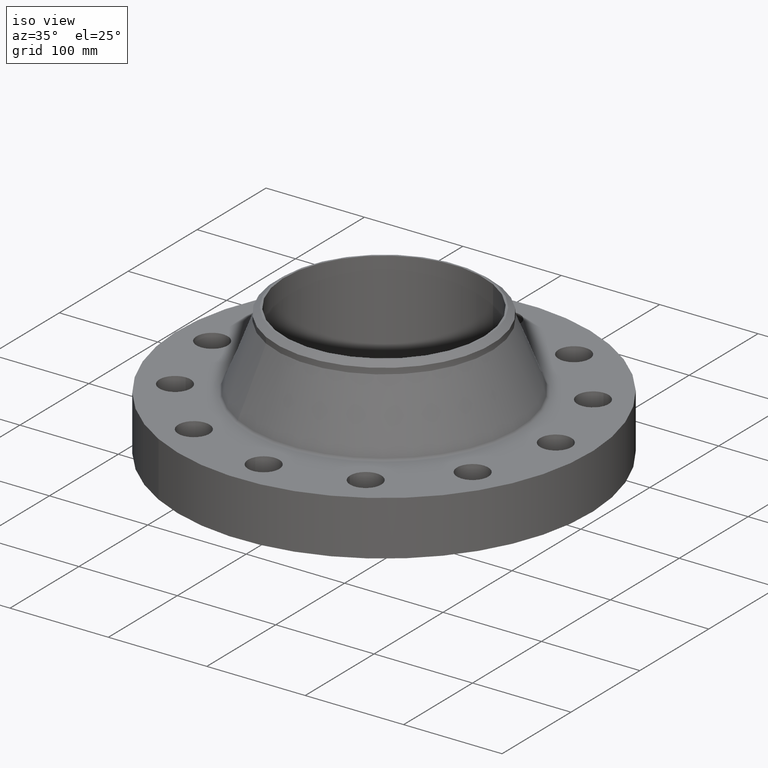
[diagram: clean part render]
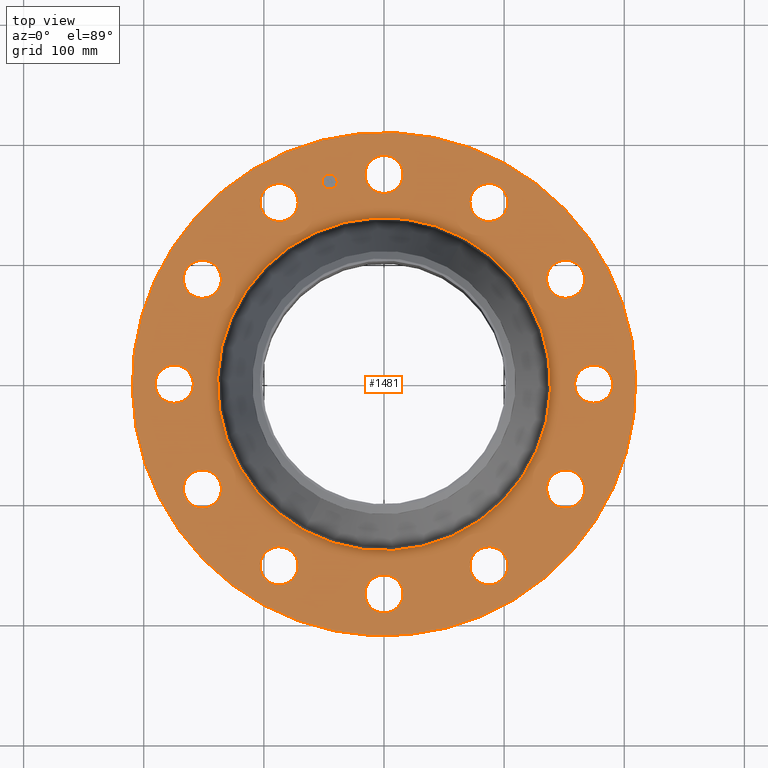
[diagram: tour spotlight — one face highlighted and labeled with its STEP entity id]
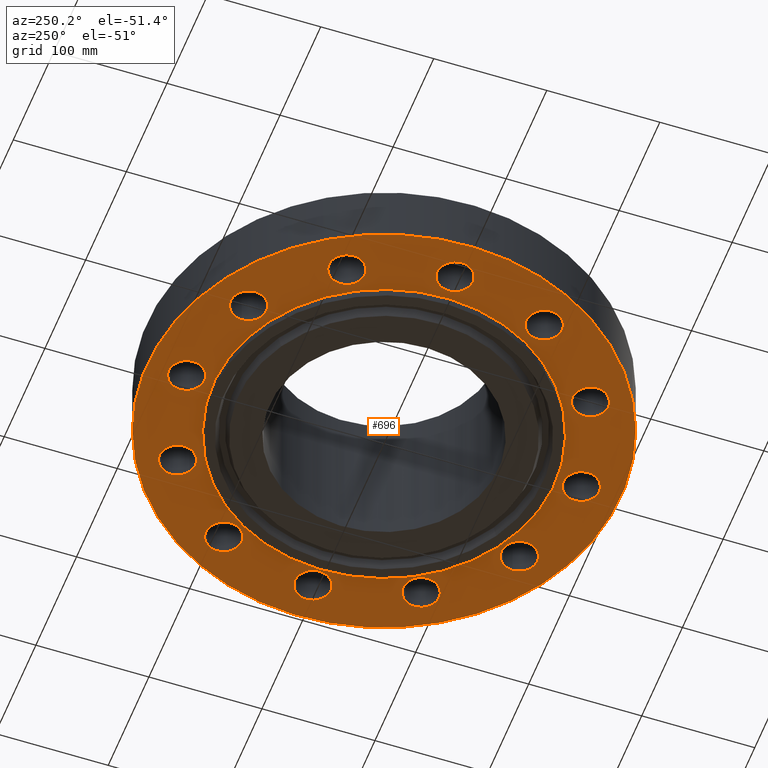
[diagram: tour spotlight — one face highlighted and labeled with its STEP entity id]
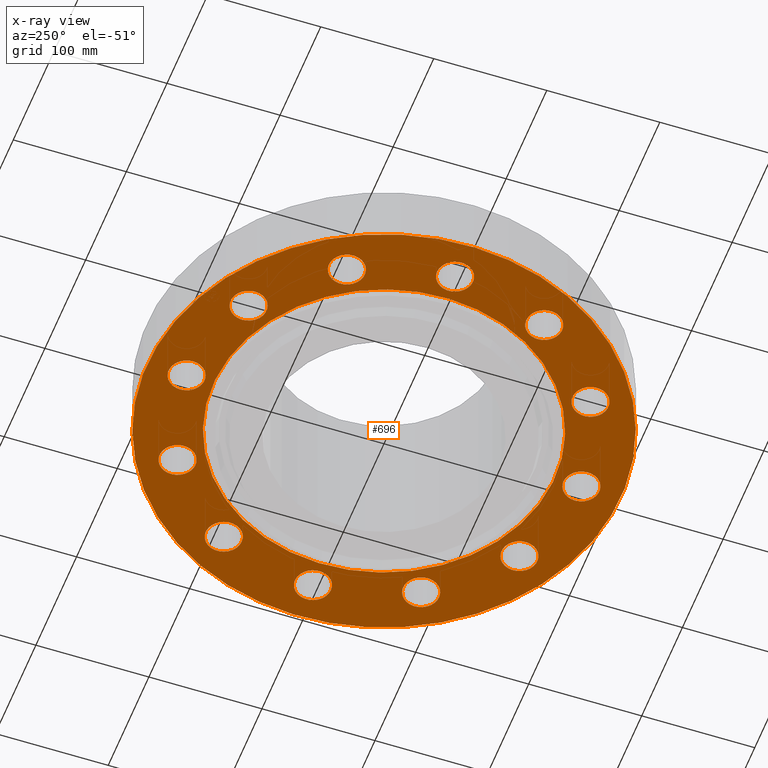
[diagram: x-ray of the same camera — body ghosted, this tour face saturated]
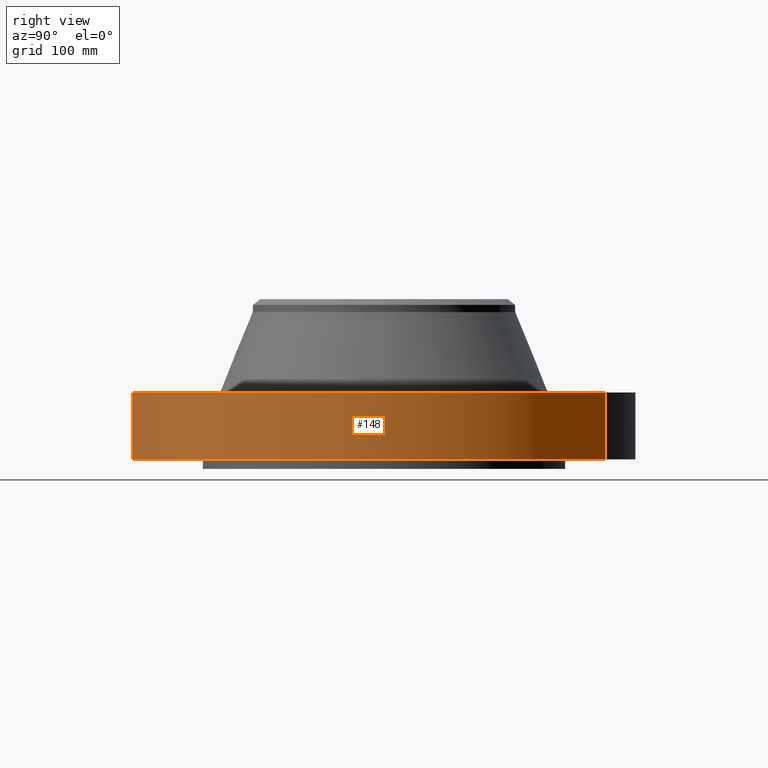
[diagram: tour spotlight — one face highlighted and labeled with its STEP entity id]
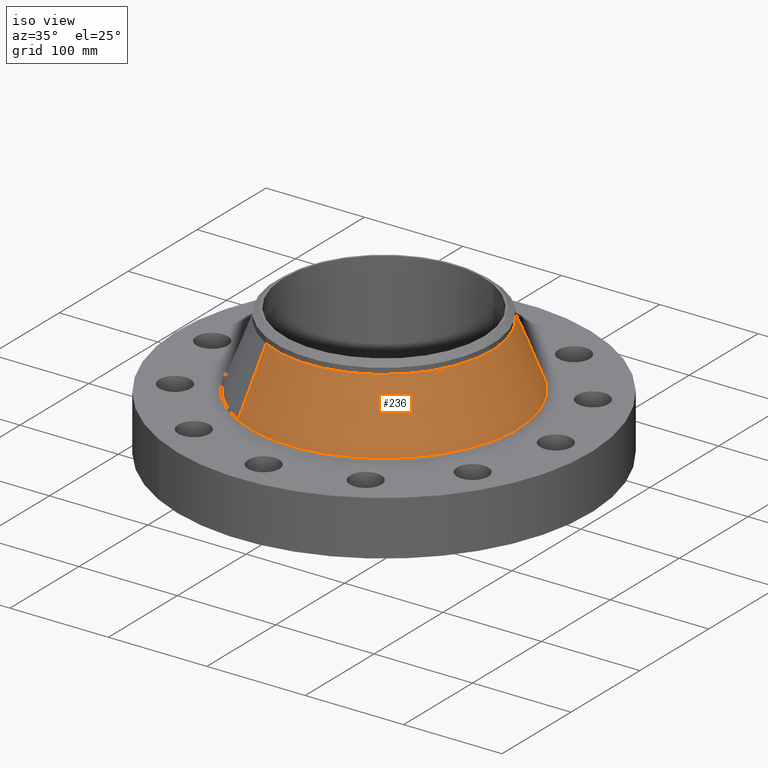
[diagram: tour spotlight — one face highlighted and labeled with its STEP entity id]
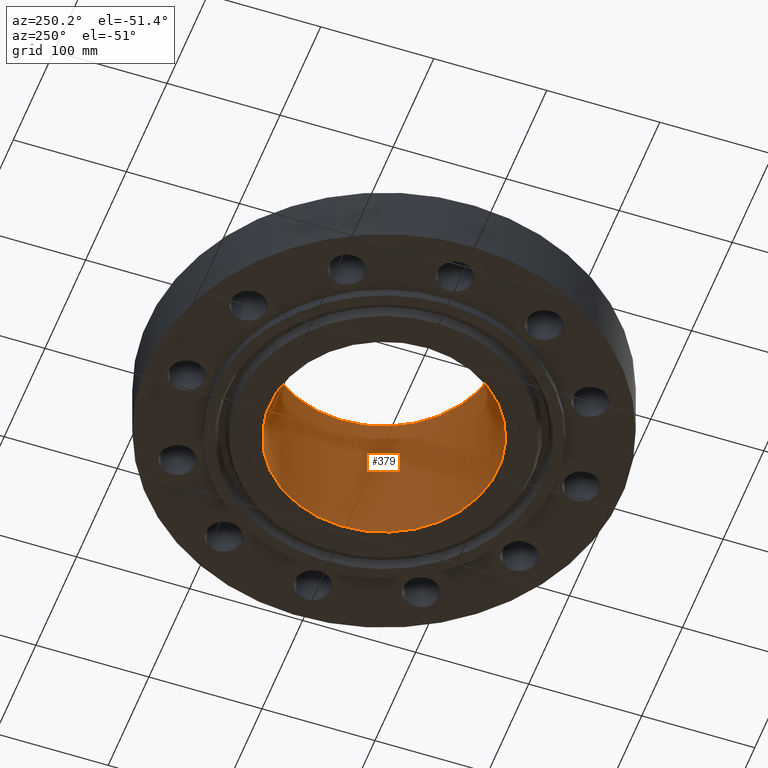
[diagram: tour spotlight — one face highlighted and labeled with its STEP entity id]
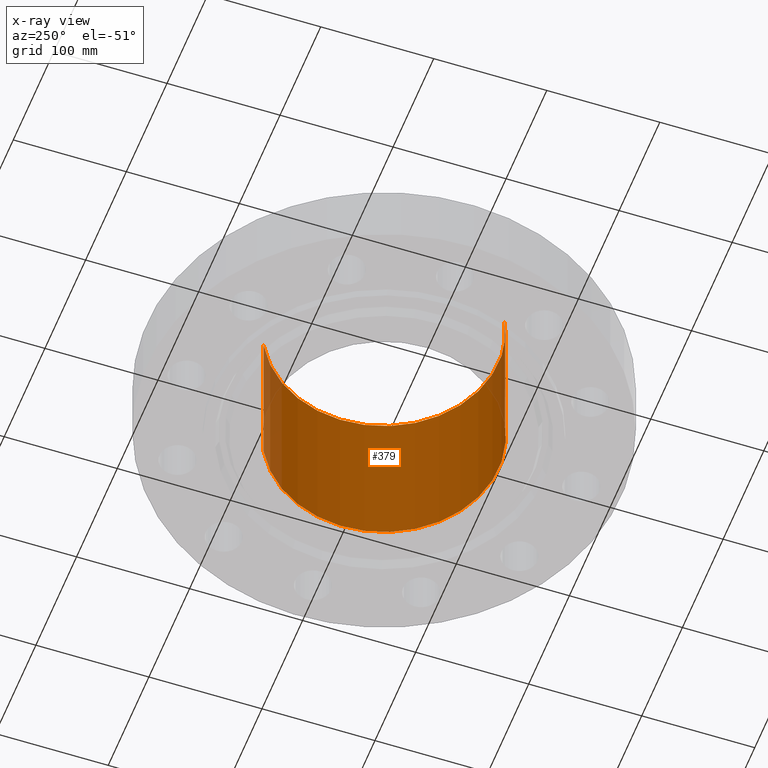
[diagram: x-ray of the same camera — body ghosted, this tour face saturated]
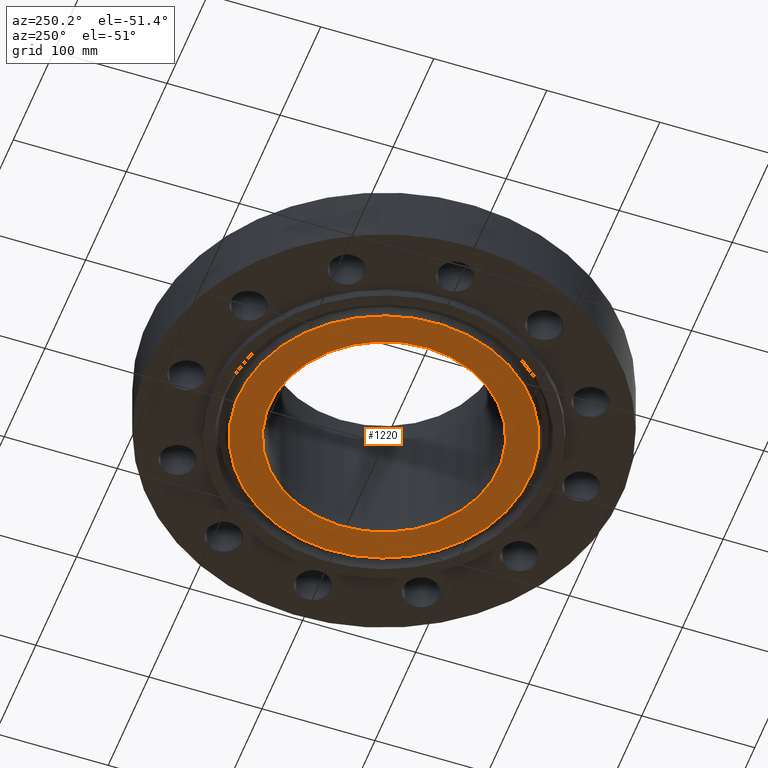
[diagram: tour spotlight — one face highlighted and labeled with its STEP entity id]
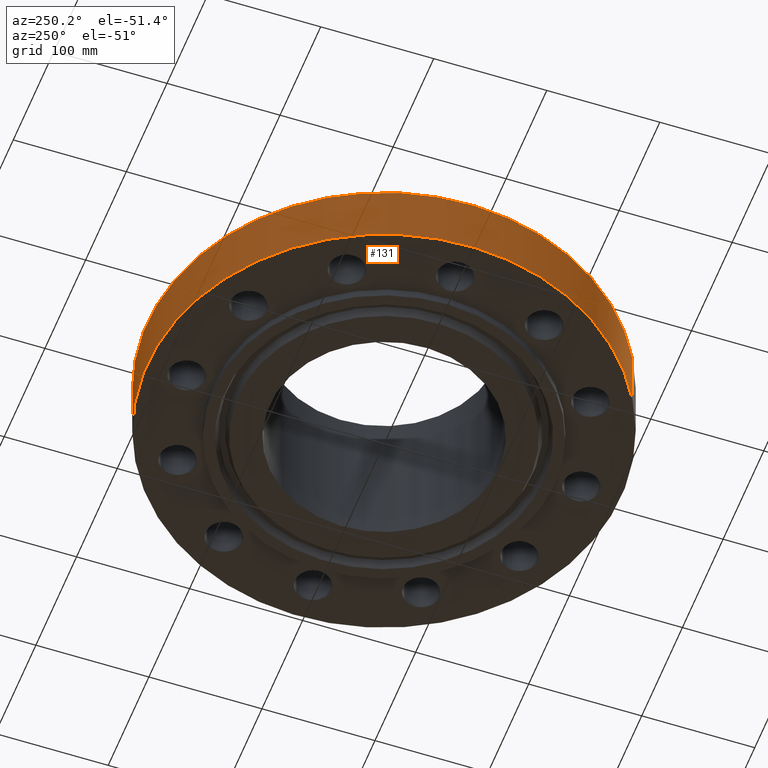
[diagram: tour spotlight — one face highlighted and labeled with its STEP entity id]
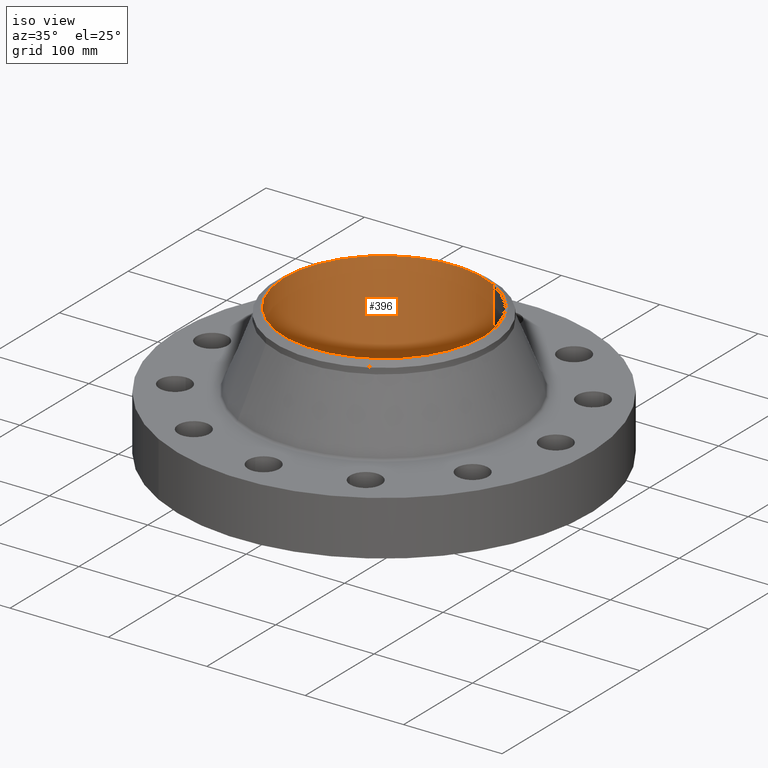
[diagram: tour spotlight — one face highlighted and labeled with its STEP entity id]
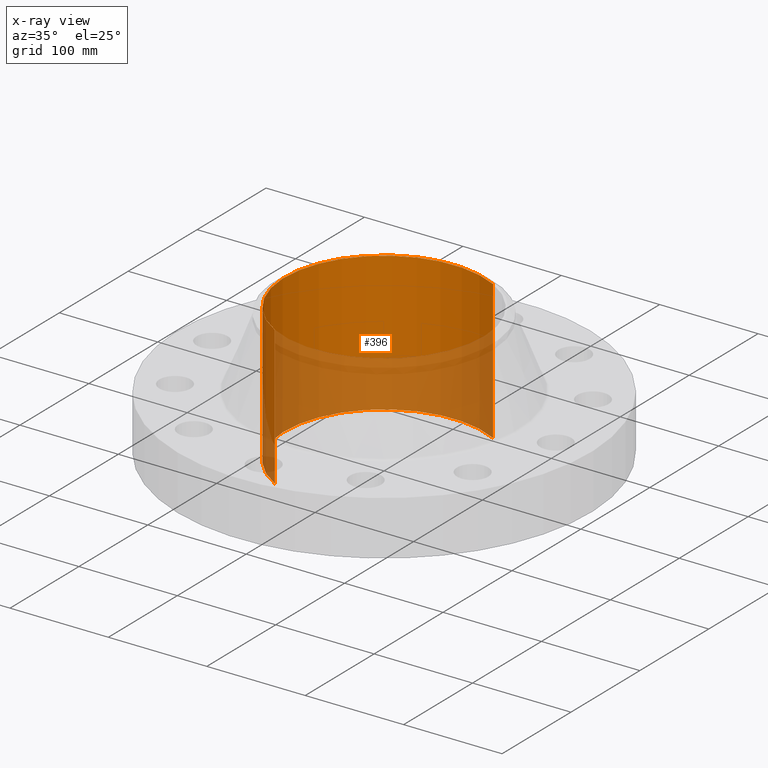
[diagram: x-ray of the same camera — body ghosted, this tour face saturated]
A machine part: a face-by-face anatomy tour. The part has 437 B-rep faces; the first image is the clean iso view, then the 8 largest visible faces are spotlighted one at a time (largest first), each with its STEP entity span.

Face 1 — top view, entity #1481. In plain terms, the highlighted planar face has unit normal (0, 0, -1).
Definition (entity closure, byte-faithful):
#65=AXIS2_PLACEMENT_3D('Circle Axis2P3D',#63,#64,$) ;
#82=AXIS2_PLACEMENT_3D('Circle Axis2P3D',#80,#81,$) ;
#115=AXIS2_PLACEMENT_3D('Circle Axis2P3D',#113,#114,$) ;
#139=AXIS2_PLACEMENT_3D('Circle Axis2P3D',#137,#138,$) ;
#156=AXIS2_PLACEMENT_3D('Circle Axis2P3D',#154,#155,$) ;
#191=AXIS2_PLACEMENT_3D('Circle Axis2P3D',#189,#190,$) ;
#718=AXIS2_PLACEMENT_3D('Circle Axis2P3D',#716,#717,$) ;
#730=AXIS2_PLACEMENT_3D('Circle Axis2P3D',#728,#729,$) ;
#761=AXIS2_PLACEMENT_3D('Circle Axis2P3D',#759,#760,$) ;
#773=AXIS2_PLACEMENT_3D('Circle Axis2P3D',#771,#772,$) ;
#804=AXIS2_PLACEMENT_3D('Circle Axis2P3D',#802,#803,$) ;
#816=AXIS2_PLACEMENT_3D('Circle Axis2P3D',#814,#815,$) ;
#847=AXIS2_PLACEMENT_3D('Circle Axis2P3D',#845,#846,$) ;
#859=AXIS2_PLACEMENT_3D('Circle Axis2P3D',#857,#858,$) ;
#890=AXIS2_PLACEMENT_3D('Circle Axis2P3D',#888,#889,$) ;
#902=AXIS2_PLACEMENT_3D('Circle Axis2P3D',#900,#901,$) ;
#933=AXIS2_PLACEMENT_3D('Circle Axis2P3D',#931,#932,$) ;
#945=AXIS2_PLACEMENT_3D('Circle Axis2P3D',#943,#944,$) ;
#976=AXIS2_PLACEMENT_3D('Circle Axis2P3D',#974,#975,$) ;
#988=AXIS2_PLACEMENT_3D('Circle Axis2P3D',#986,#987,$) ;
#1019=AXIS2_PLACEMENT_3D('Circle Axis2P3D',#1017,#1018,$) ;
#1031=AXIS2_PLACEMENT_3D('Circle Axis2P3D',#1029,#1030,$) ;
#1062=AXIS2_PLACEMENT_3D('Circle Axis2P3D',#1060,#1061,$) ;
#1074=AXIS2_PLACEMENT_3D('Circle Axis2P3D',#1072,#1073,$) ;
#1105=AXIS2_PLACEMENT_3D('Circle Axis2P3D',#1103,#1104,$) ;
#1117=AXIS2_PLACEMENT_3D('Circle Axis2P3D',#1115,#1116,$) ;
#1148=AXIS2_PLACEMENT_3D('Circle Axis2P3D',#1146,#1147,$) ;
#1160=AXIS2_PLACEMENT_3D('Circle Axis2P3D',#1158,#1159,$) ;
#1405=AXIS2_PLACEMENT_3D('Plane Axis2P3D',#1402,#1403,#1404) ;
#1465=AXIS2_PLACEMENT_3D('Circle Axis2P3D',#1463,#1464,$) ;
#1474=AXIS2_PLACEMENT_3D('Circle Axis2P3D',#1472,#1473,$) ;
#46=CARTESIAN_POINT('Vertex',(-0.548489101184,7.17464096166,2.19000000001)) ;
#60=CARTESIAN_POINT('Vertex',(0.548489101184,6.5753590384,2.19000000001)) ;
#63=CARTESIAN_POINT('Axis2P3D Location',(0.,6.87500000003,2.19000000001)) ;
#80=CARTESIAN_POINT('Axis2P3D Location',(0.,6.87500000003,2.19000000001)) ;
#110=CARTESIAN_POINT('Vertex',(-3.9552606935,-7.24005613562,2.19000000001)) ;
#113=CARTESIAN_POINT('Axis2P3D Location',(0.,0.,2.19000000001)) ;
#117=CARTESIAN_POINT('Vertex',(3.9552606935,7.24005613562,2.19000000001)) ;
#137=CARTESIAN_POINT('Axis2P3D Location',(0.,0.,2.19000000001)) ;
#154=CARTESIAN_POINT('Axis2P3D Location',(0.,0.,2.19000000001)) ;
#158=CARTESIAN_POINT('Vertex',(2.6157815767,4.78815605883,2.19000000001)) ;
#160=CARTESIAN_POINT('Vertex',(-2.6157815767,-4.78815605883,2.19000000001)) ;
#189=CARTESIAN_POINT('Axis2P3D Location',(0.,0.,2.19000000001)) ;
#706=CARTESIAN_POINT('Vertex',(-3.1123149855,-6.48766588642,2.19000000001)) ;
#713=CARTESIAN_POINT('Vertex',(-3.76268501452,-5.42018341567,2.19000000001)) ;
#716=CARTESIAN_POINT('Axis2P3D Location',(-3.43750000001,-5.95392465104,2.19000000001)) ;
#728=CARTESIAN_POINT('Axis2P3D Location',(-3.43750000001,-5.95392465104,2.19000000001)) ;
#749=CARTESIAN_POINT('Vertex',(5.93917678523,4.06232597615,2.19000000001)) ;
#756=CARTESIAN_POINT('Vertex',(5.96867251685,2.81267402388,2.19000000001)) ;
#759=CARTESIAN_POINT('Axis2P3D Location',(5.95392465104,3.43750000001,2.19000000001)) ;
#771=CARTESIAN_POINT('Axis2P3D Location',(5.95392465104,3.43750000001,2.19000000001)) ;
#792=CARTESIAN_POINT('Vertex',(-5.93917678523,-4.06232597615,2.19000000001)) ;
#799=CARTESIAN_POINT('Vertex',(-5.96867251685,-2.81267402388,2.19000000001)) ;
#802=CARTESIAN_POINT('Axis2P3D Location',(-5.95392465104,-3.43750000001,2.19000000001)) ;
#814=CARTESIAN_POINT('Axis2P3D Location',(-5.95392465104,-3.43750000001,2.19000000001)) ;
#835=CARTESIAN_POINT('Vertex',(7.17464096166,0.548489101184,2.19000000001)) ;
#842=CARTESIAN_POINT('Vertex',(6.5753590384,-0.548489101184,2.19000000001)) ;
#845=CARTESIAN_POINT('Axis2P3D Location',(6.87500000003,-6.97992600996E-016,2.19000000001)) ;
#857=CARTESIAN_POINT('Axis2P3D Location',(6.87500000003,-6.97992600996E-016,2.19000000001)) ;
#878=CARTESIAN_POINT('Vertex',(-7.17464096166,-0.548489101184,2.19000000001)) ;
#885=CARTESIAN_POINT('Vertex',(-6.5753590384,0.548489101184,2.19000000001)) ;
#888=CARTESIAN_POINT('Axis2P3D Location',(-6.87500000003,-1.26291701163E-015,2.19000000001)) ;
#900=CARTESIAN_POINT('Axis2P3D Location',(-6.87500000003,-1.26291701163E-015,2.19000000001)) ;
#921=CARTESIAN_POINT('Vertex',(6.48766588642,-3.1123149855,2.19000000001)) ;
#928=CARTESIAN_POINT('Vertex',(5.42018341567,-3.76268501452,2.19000000001)) ;
#931=CARTESIAN_POINT('Axis2P3D Location',(5.95392465104,-3.43750000001,2.19000000001)) ;
#943=CARTESIAN_POINT('Axis2P3D Location',(5.95392465104,-3.43750000001,2.19000000001)) ;
#964=CARTESIAN_POINT('Vertex',(-6.48766588642,3.1123149855,2.19000000001)) ;
#971=CARTESIAN_POINT('Vertex',(-5.42018341567,3.76268501452,2.19000000001)) ;
#974=CARTESIAN_POINT('Axis2P3D Location',(-5.95392465104,3.43750000001,2.19000000001)) ;
#986=CARTESIAN_POINT('Axis2P3D Location',(-5.95392465104,3.43750000001,2.19000000001)) ;
#1007=CARTESIAN_POINT('Vertex',(4.06232597615,-5.93917678523,2.19000000001)) ;
#1014=CARTESIAN_POINT('Vertex',(2.81267402388,-5.96867251685,2.19000000001)) ;
#1017=CARTESIAN_POINT('Axis2P3D Location',(3.43750000001,-5.95392465104,2.19000000001)) ;
#1029=CARTESIAN_POINT('Axis2P3D Location',(3.43750000001,-5.95392465104,2.19000000001)) ;
#1050=CARTESIAN_POINT('Vertex',(-4.06232597615,5.93917678523,2.19000000001)) ;
#1057=CARTESIAN_POINT('Vertex',(-2.81267402388,5.96867251685,2.19000000001)) ;
#1060=CARTESIAN_POINT('Axis2P3D Location',(-3.43750000001,5.95392465104,2.19000000001)) ;
#1072=CARTESIAN_POINT('Axis2P3D Location',(-3.43750000001,5.95392465104,2.19000000001)) ;
#1093=CARTESIAN_POINT('Vertex',(0.548489101184,-7.17464096166,2.19000000001)) ;
#1100=CARTESIAN_POINT('Vertex',(-0.548489101184,-6.5753590384,2.19000000001)) ;
#1103=CARTESIAN_POINT('Axis2P3D Location',(8.41944674417E-016,-6.87500000003,2.19000000001)) ;
#1115=CARTESIAN_POINT('Axis2P3D Location',(8.41944674417E-016,-6.87500000003,2.19000000001)) ;
#1136=CARTESIAN_POINT('Vertex',(3.1123149855,6.48766588642,2.19000000001)) ;
#1143=CARTESIAN_POINT('Vertex',(3.76268501452,5.42018341567,2.19000000001)) ;
#1146=CARTESIAN_POINT('Axis2P3D Location',(3.43750000001,5.95392465104,2.19000000001)) ;
#1158=CARTESIAN_POINT('Axis2P3D Location',(3.43750000001,5.95392465104,2.19000000001)) ;
#1402=CARTESIAN_POINT('Axis2P3D Location',(0.,8.25000000003,2.19000000001)) ;
#1463=CARTESIAN_POINT('Axis2P3D Location',(-1.77938093509,6.64074005576,2.19000000001)) ;
#1467=CARTESIAN_POINT('Vertex',(-2.01844757709,6.5766823421,2.19000000001)) ;
#1469=CARTESIAN_POINT('Vertex',(-1.54031429308,6.70479776943,2.19000000001)) ;
#1472=CARTESIAN_POINT('Axis2P3D Location',(-1.77938093509,6.64074005576,2.19000000001)) ;
#64=DIRECTION('Axis2P3D Direction',(0.,-0.,-0.0393700787402)) ;
#81=DIRECTION('Axis2P3D Direction',(0.,-0.,-0.0393700787402)) ;
#114=DIRECTION('Axis2P3D Direction',(0.,0.,-0.0393700787402)) ;
#138=DIRECTION('Axis2P3D Direction',(0.,0.,-0.0393700787402)) ;
#155=DIRECTION('Axis2P3D Direction',(0.,0.,-0.0393700787402)) ;
#190=DIRECTION('Axis2P3D Direction',(0.,0.,-0.0393700787402)) ;
#717=DIRECTION('Axis2P3D Direction',(0.,0.,-0.0393700787402)) ;
#729=DIRECTION('Axis2P3D Direction',(0.,0.,-0.0393700787402)) ;
#760=DIRECTION('Axis2P3D Direction',(0.,-0.,-0.0393700787402)) ;
#772=DIRECTION('Axis2P3D Direction',(0.,-0.,-0.0393700787402)) ;
#803=DIRECTION('Axis2P3D Direction',(0.,0.,-0.0393700787402)) ;
#815=DIRECTION('Axis2P3D Direction',(0.,0.,-0.0393700787402)) ;
#846=DIRECTION('Axis2P3D Direction',(0.,-0.,-0.0393700787402)) ;
#858=DIRECTION('Axis2P3D Direction',(0.,-0.,-0.0393700787402)) ;
#889=DIRECTION('Axis2P3D Direction',(0.,0.,-0.0393700787402)) ;
#901=DIRECTION('Axis2P3D Direction',(0.,0.,-0.0393700787402)) ;
#932=DIRECTION('Axis2P3D Direction',(-0.,0.,-0.0393700787402)) ;
#944=DIRECTION('Axis2P3D Direction',(-0.,0.,-0.0393700787402)) ;
#975=DIRECTION('Axis2P3D Direction',(0.,0.,-0.0393700787402)) ;
#987=DIRECTION('Axis2P3D Direction',(0.,0.,-0.0393700787402)) ;
#1018=DIRECTION('Axis2P3D Direction',(-0.,0.,-0.0393700787402)) ;
#1030=DIRECTION('Axis2P3D Direction',(-0.,0.,-0.0393700787402)) ;
#1061=DIRECTION('Axis2P3D Direction',(0.,0.,-0.0393700787402)) ;
#1073=DIRECTION('Axis2P3D Direction',(0.,0.,-0.0393700787402)) ;
#1104=DIRECTION('Axis2P3D Direction',(-0.,0.,-0.0393700787402)) ;
#1116=DIRECTION('Axis2P3D Direction',(-0.,0.,-0.0393700787402)) ;
#1147=DIRECTION('Axis2P3D Direction',(0.,-0.,-0.0393700787402)) ;
#1159=DIRECTION('Axis2P3D Direction',(0.,-0.,-0.0393700787402)) ;
#1403=DIRECTION('Axis2P3D Direction',(0.,0.,-0.0393700787402)) ;
#1404=DIRECTION('Axis2P3D XDirection',(0.0393700787402,0.,0.)) ;
#1464=DIRECTION('Axis2P3D Direction',(0.,0.,-0.0393700787402)) ;
#1473=DIRECTION('Axis2P3D Direction',(0.,0.,-0.0393700787402)) ;
#1408=ORIENTED_EDGE('',*,*,#141,.F.) ;
#1409=ORIENTED_EDGE('',*,*,#119,.F.) ;
#1412=ORIENTED_EDGE('',*,*,#67,.T.) ;
#1413=ORIENTED_EDGE('',*,*,#84,.T.) ;
#1416=ORIENTED_EDGE('',*,*,#193,.T.) ;
#1417=ORIENTED_EDGE('',*,*,#162,.T.) ;
#1420=ORIENTED_EDGE('',*,*,#1162,.T.) ;
#1421=ORIENTED_EDGE('',*,*,#1150,.T.) ;
#1424=ORIENTED_EDGE('',*,*,#775,.T.) ;
#1425=ORIENTED_EDGE('',*,*,#763,.T.) ;
#1428=ORIENTED_EDGE('',*,*,#861,.T.) ;
#1429=ORIENTED_EDGE('',*,*,#849,.T.) ;
#1432=ORIENTED_EDGE('',*,*,#947,.T.) ;
#1433=ORIENTED_EDGE('',*,*,#935,.T.) ;
#1436=ORIENTED_EDGE('',*,*,#1033,.T.) ;
#1437=ORIENTED_EDGE('',*,*,#1021,.T.) ;
#1440=ORIENTED_EDGE('',*,*,#1119,.T.) ;
#1441=ORIENTED_EDGE('',*,*,#1107,.T.) ;
#1444=ORIENTED_EDGE('',*,*,#732,.T.) ;
#1445=ORIENTED_EDGE('',*,*,#720,.T.) ;
#1448=ORIENTED_EDGE('',*,*,#818,.T.) ;
#1449=ORIENTED_EDGE('',*,*,#806,.T.) ;
#1452=ORIENTED_EDGE('',*,*,#904,.T.) ;
#1453=ORIENTED_EDGE('',*,*,#892,.T.) ;
#1456=ORIENTED_EDGE('',*,*,#990,.T.) ;
#1457=ORIENTED_EDGE('',*,*,#978,.T.) ;
#1460=ORIENTED_EDGE('',*,*,#1076,.T.) ;
#1461=ORIENTED_EDGE('',*,*,#1064,.T.) ;
#1478=ORIENTED_EDGE('',*,*,#1471,.T.) ;
#1479=ORIENTED_EDGE('',*,*,#1476,.T.) ;
#1414=FACE_BOUND('',#1411,.T.) ;
#1418=FACE_BOUND('',#1415,.T.) ;
#1422=FACE_BOUND('',#1419,.T.) ;
#1426=FACE_BOUND('',#1423,.T.) ;
#1430=FACE_BOUND('',#1427,.T.) ;
#1434=FACE_BOUND('',#1431,.T.) ;
#1438=FACE_BOUND('',#1435,.T.) ;
#1442=FACE_BOUND('',#1439,.T.) ;
#1446=FACE_BOUND('',#1443,.T.) ;
#1450=FACE_BOUND('',#1447,.T.) ;
#1454=FACE_BOUND('',#1451,.T.) ;
#1458=FACE_BOUND('',#1455,.T.) ;
#1462=FACE_BOUND('',#1459,.T.) ;
#1480=FACE_BOUND('',#1477,.T.) ;
#1481=ADVANCED_FACE('PartBody',(#1410,#1414,#1418,#1422,#1426,#1430,#1434,#1438,#1442,#1446,#1450,#1454,#1458,#1462,#1480),#1406,.F.) ;
#66=CIRCLE('generated circle',#65,0.625000000003) ;
#83=CIRCLE('generated circle',#82,0.625000000003) ;
#116=CIRCLE('generated circle',#115,8.25000000003) ;
#140=CIRCLE('generated circle',#139,8.25000000003) ;
#157=CIRCLE('generated circle',#156,5.45607475212) ;
#192=CIRCLE('generated circle',#191,5.45607475212) ;
#719=CIRCLE('generated circle',#718,0.625000000003) ;
#731=CIRCLE('generated circle',#730,0.625000000003) ;
#762=CIRCLE('generated circle',#761,0.625000000003) ;
#774=CIRCLE('generated circle',#773,0.625000000003) ;
#805=CIRCLE('generated circle',#804,0.625000000003) ;
#817=CIRCLE('generated circle',#816,0.625000000003) ;
#848=CIRCLE('generated circle',#847,0.625000000003) ;
#860=CIRCLE('generated circle',#859,0.625000000003) ;
#891=CIRCLE('generated circle',#890,0.625000000003) ;
#903=CIRCLE('generated circle',#902,0.625000000003) ;
#934=CIRCLE('generated circle',#933,0.625000000003) ;
#946=CIRCLE('generated circle',#945,0.625000000003) ;
#977=CIRCLE('generated circle',#976,0.625000000003) ;
#989=CIRCLE('generated circle',#988,0.625000000003) ;
#1020=CIRCLE('generated circle',#1019,0.625000000003) ;
#1032=CIRCLE('generated circle',#1031,0.625000000003) ;
#1063=CIRCLE('generated circle',#1062,0.625000000003) ;
#1075=CIRCLE('generated circle',#1074,0.625000000003) ;
#1106=CIRCLE('generated circle',#1105,0.625000000003) ;
#1118=CIRCLE('generated circle',#1117,0.625000000003) ;
#1149=CIRCLE('generated circle',#1148,0.625000000003) ;
#1161=CIRCLE('generated circle',#1160,0.625000000003) ;
#1466=CIRCLE('generated circle',#1465,0.247500000001) ;
#1475=CIRCLE('generated circle',#1474,0.247500000001) ;
#67=EDGE_CURVE('',#47,#61,#66,.T.) ;
#84=EDGE_CURVE('',#61,#47,#83,.T.) ;
#119=EDGE_CURVE('',#111,#118,#116,.T.) ;
#141=EDGE_CURVE('',#118,#111,#140,.T.) ;
#162=EDGE_CURVE('',#159,#161,#157,.T.) ;
#193=EDGE_CURVE('',#161,#159,#192,.T.) ;
#720=EDGE_CURVE('',#707,#714,#719,.T.) ;
#732=EDGE_CURVE('',#714,#707,#731,.T.) ;
#763=EDGE_CURVE('',#750,#757,#762,.T.) ;
#775=EDGE_CURVE('',#757,#750,#774,.T.) ;
#806=EDGE_CURVE('',#793,#800,#805,.T.) ;
#818=EDGE_CURVE('',#800,#793,#817,.T.) ;
#849=EDGE_CURVE('',#836,#843,#848,.T.) ;
#861=EDGE_CURVE('',#843,#836,#860,.T.) ;
#892=EDGE_CURVE('',#879,#886,#891,.T.) ;
#904=EDGE_CURVE('',#886,#879,#903,.T.) ;
#935=EDGE_CURVE('',#922,#929,#934,.T.) ;
#947=EDGE_CURVE('',#929,#922,#946,.T.) ;
#978=EDGE_CURVE('',#965,#972,#977,.T.) ;
#990=EDGE_CURVE('',#972,#965,#989,.T.) ;
#1021=EDGE_CURVE('',#1008,#1015,#1020,.T.) ;
#1033=EDGE_CURVE('',#1015,#1008,#1032,.T.) ;
#1064=EDGE_CURVE('',#1051,#1058,#1063,.T.) ;
#1076=EDGE_CURVE('',#1058,#1051,#1075,.T.) ;
#1107=EDGE_CURVE('',#1094,#1101,#1106,.T.) ;
#1119=EDGE_CURVE('',#1101,#1094,#1118,.T.) ;
#1150=EDGE_CURVE('',#1137,#1144,#1149,.T.) ;
#1162=EDGE_CURVE('',#1144,#1137,#1161,.T.) ;
#1471=EDGE_CURVE('',#1468,#1470,#1466,.T.) ;
#1476=EDGE_CURVE('',#1470,#1468,#1475,.T.) ;
#1407=EDGE_LOOP('',(#1408,#1409)) ;
#1411=EDGE_LOOP('',(#1412,#1413)) ;
#1415=EDGE_LOOP('',(#1416,#1417)) ;
#1419=EDGE_LOOP('',(#1420,#1421)) ;
#1423=EDGE_LOOP('',(#1424,#1425)) ;
#1427=EDGE_LOOP('',(#1428,#1429)) ;
#1431=EDGE_LOOP('',(#1432,#1433)) ;
#1435=EDGE_LOOP('',(#1436,#1437)) ;
#1439=EDGE_LOOP('',(#1440,#1441)) ;
#1443=EDGE_LOOP('',(#1444,#1445)) ;
#1447=EDGE_LOOP('',(#1448,#1449)) ;
#1451=EDGE_LOOP('',(#1452,#1453)) ;
#1455=EDGE_LOOP('',(#1456,#1457)) ;
#1459=EDGE_LOOP('',(#1460,#1461)) ;
#1477=EDGE_LOOP('',(#1478,#1479)) ;
#1410=FACE_OUTER_BOUND('',#1407,.T.) ;
#1406=PLANE('',#1405) ;
#47=VERTEX_POINT('',#46) ;
#61=VERTEX_POINT('',#60) ;
#111=VERTEX_POINT('',#110) ;
#118=VERTEX_POINT('',#117) ;
#159=VERTEX_POINT('',#158) ;
#161=VERTEX_POINT('',#160) ;
#707=VERTEX_POINT('',#706) ;
#714=VERTEX_POINT('',#713) ;
#750=VERTEX_POINT('',#749) ;
#757=VERTEX_POINT('',#756) ;
#793=VERTEX_POINT('',#792) ;
#800=VERTEX_POINT('',#799) ;
#836=VERTEX_POINT('',#835) ;
#843=VERTEX_POINT('',#842) ;
#879=VERTEX_POINT('',#878) ;
#886=VERTEX_POINT('',#885) ;
#922=VERTEX_POINT('',#921) ;
#929=VERTEX_POINT('',#928) ;
#965=VERTEX_POINT('',#964) ;
#972=VERTEX_POINT('',#971) ;
#1008=VERTEX_POINT('',#1007) ;
#1015=VERTEX_POINT('',#1014) ;
#1051=VERTEX_POINT('',#1050) ;
#1058=VERTEX_POINT('',#1057) ;
#1094=VERTEX_POINT('',#1093) ;
#1101=VERTEX_POINT('',#1100) ;
#1137=VERTEX_POINT('',#1136) ;
#1144=VERTEX_POINT('',#1143) ;
#1468=VERTEX_POINT('',#1467) ;
#1470=VERTEX_POINT('',#1469) ;

Face 2 — auxiliary view, entity #696. An x-ray twin of the same camera follows (body ghosted, this face saturated) — the face is partly hidden behind the body. In plain terms, the highlighted planar face has unit normal (0, 0, -1).
Definition (entity closure, byte-faithful):
#51=AXIS2_PLACEMENT_3D('Circle Axis2P3D',#49,#50,$) ;
#77=AXIS2_PLACEMENT_3D('Circle Axis2P3D',#75,#76,$) ;
#99=AXIS2_PLACEMENT_3D('Circle Axis2P3D',#97,#98,$) ;
#134=AXIS2_PLACEMENT_3D('Circle Axis2P3D',#132,#133,$) ;
#447=AXIS2_PLACEMENT_3D('Circle Axis2P3D',#445,#446,$) ;
#471=AXIS2_PLACEMENT_3D('Circle Axis2P3D',#469,#470,$) ;
#484=AXIS2_PLACEMENT_3D('Plane Axis2P3D',#481,#482,#483) ;
#500=AXIS2_PLACEMENT_3D('Circle Axis2P3D',#498,#499,$) ;
#509=AXIS2_PLACEMENT_3D('Circle Axis2P3D',#507,#508,$) ;
#518=AXIS2_PLACEMENT_3D('Circle Axis2P3D',#516,#517,$) ;
#527=AXIS2_PLACEMENT_3D('Circle Axis2P3D',#525,#526,$) ;
#536=AXIS2_PLACEMENT_3D('Circle Axis2P3D',#534,#535,$) ;
#545=AXIS2_PLACEMENT_3D('Circle Axis2P3D',#543,#544,$) ;
#554=AXIS2_PLACEMENT_3D('Circle Axis2P3D',#552,#553,$) ;
#563=AXIS2_PLACEMENT_3D('Circle Axis2P3D',#561,#562,$) ;
#572=AXIS2_PLACEMENT_3D('Circle Axis2P3D',#570,#571,$) ;
#581=AXIS2_PLACEMENT_3D('Circle Axis2P3D',#579,#580,$) ;
#590=AXIS2_PLACEMENT_3D('Circle Axis2P3D',#588,#589,$) ;
#599=AXIS2_PLACEMENT_3D('Circle Axis2P3D',#597,#598,$) ;
#608=AXIS2_PLACEMENT_3D('Circle Axis2P3D',#606,#607,$) ;
#617=AXIS2_PLACEMENT_3D('Circle Axis2P3D',#615,#616,$) ;
#626=AXIS2_PLACEMENT_3D('Circle Axis2P3D',#624,#625,$) ;
#635=AXIS2_PLACEMENT_3D('Circle Axis2P3D',#633,#634,$) ;
#644=AXIS2_PLACEMENT_3D('Circle Axis2P3D',#642,#643,$) ;
#653=AXIS2_PLACEMENT_3D('Circle Axis2P3D',#651,#652,$) ;
#662=AXIS2_PLACEMENT_3D('Circle Axis2P3D',#660,#661,$) ;
#671=AXIS2_PLACEMENT_3D('Circle Axis2P3D',#669,#670,$) ;
#680=AXIS2_PLACEMENT_3D('Circle Axis2P3D',#678,#679,$) ;
#689=AXIS2_PLACEMENT_3D('Circle Axis2P3D',#687,#688,$) ;
#44=CARTESIAN_POINT('Vertex',(-0.548489101184,7.17464096166,0.)) ;
#49=CARTESIAN_POINT('Axis2P3D Location',(0.,6.87500000003,0.)) ;
#53=CARTESIAN_POINT('Vertex',(0.548489101184,6.5753590384,0.)) ;
#75=CARTESIAN_POINT('Axis2P3D Location',(0.,6.87500000003,0.)) ;
#97=CARTESIAN_POINT('Axis2P3D Location',(0.,0.,8.39223703654E-016)) ;
#101=CARTESIAN_POINT('Vertex',(-3.9552606935,-7.24005613562,5.59482469102E-016)) ;
#103=CARTESIAN_POINT('Vertex',(3.9552606935,7.24005613562,5.59482469102E-016)) ;
#132=CARTESIAN_POINT('Axis2P3D Location',(0.,0.,8.39223703654E-016)) ;
#442=CARTESIAN_POINT('Vertex',(-2.84658913547,-5.21064646124,2.79741234551E-016)) ;
#445=CARTESIAN_POINT('Axis2P3D Location',(0.,0.,5.59482469102E-016)) ;
#449=CARTESIAN_POINT('Vertex',(2.84658913547,5.21064646124,2.79741234551E-016)) ;
#469=CARTESIAN_POINT('Axis2P3D Location',(0.,0.,5.59482469102E-016)) ;
#481=CARTESIAN_POINT('Axis2P3D Location',(0.,5.93750000002,0.)) ;
#498=CARTESIAN_POINT('Axis2P3D Location',(3.43750000001,5.95392465104,0.)) ;
#502=CARTESIAN_POINT('Vertex',(3.1123149855,6.48766588642,0.)) ;
#504=CARTESIAN_POINT('Vertex',(3.76268501452,5.42018341567,0.)) ;
#507=CARTESIAN_POINT('Axis2P3D Location',(3.43750000001,5.95392465104,0.)) ;
#516=CARTESIAN_POINT('Axis2P3D Location',(5.95392465104,3.43750000001,0.)) ;
#520=CARTESIAN_POINT('Vertex',(5.93917678523,4.06232597615,0.)) ;
#522=CARTESIAN_POINT('Vertex',(5.96867251685,2.81267402388,0.)) ;
#525=CARTESIAN_POINT('Axis2P3D Location',(5.95392465104,3.43750000001,0.)) ;
#534=CARTESIAN_POINT('Axis2P3D Location',(6.87500000003,-1.1189649382E-015,0.)) ;
#538=CARTESIAN_POINT('Vertex',(7.17464096166,0.548489101184,0.)) ;
#540=CARTESIAN_POINT('Vertex',(6.5753590384,-0.548489101184,0.)) ;
#543=CARTESIAN_POINT('Axis2P3D Location',(6.87500000003,0.,0.)) ;
#552=CARTESIAN_POINT('Axis2P3D Location',(5.95392465104,-3.43750000001,0.)) ;
#556=CARTESIAN_POINT('Vertex',(6.48766588642,-3.1123149855,0.)) ;
#558=CARTESIAN_POINT('Vertex',(5.42018341567,-3.76268501452,-1.67844740731E-015)) ;
#561=CARTESIAN_POINT('Axis2P3D Location',(5.95392465104,-3.43750000001,0.)) ;
#570=CARTESIAN_POINT('Axis2P3D Location',(3.43750000001,-5.95392465104,0.)) ;
#574=CARTESIAN_POINT('Vertex',(4.06232597615,-5.93917678523,0.)) ;
#576=CARTESIAN_POINT('Vertex',(2.81267402388,-5.96867251685,0.)) ;
#579=CARTESIAN_POINT('Axis2P3D Location',(3.43750000001,-5.95392465104,0.)) ;
#588=CARTESIAN_POINT('Axis2P3D Location',(7.69288395016E-016,-6.87500000003,0.)) ;
#592=CARTESIAN_POINT('Vertex',(0.548489101184,-7.17464096166,0.)) ;
#594=CARTESIAN_POINT('Vertex',(-0.548489101184,-6.5753590384,0.)) ;
#597=CARTESIAN_POINT('Axis2P3D Location',(1.18890024684E-015,-6.87500000003,0.)) ;
#606=CARTESIAN_POINT('Axis2P3D Location',(-3.43750000001,-5.95392465104,0.)) ;
#610=CARTESIAN_POINT('Vertex',(-3.1123149855,-6.48766588642,0.)) ;
#612=CARTESIAN_POINT('Vertex',(-3.76268501452,-5.42018341567,0.)) ;
#615=CARTESIAN_POINT('Axis2P3D Location',(-3.43750000001,-5.95392465104,0.)) ;
#624=CARTESIAN_POINT('Axis2P3D Location',(-5.95392465104,-3.43750000001,0.)) ;
#628=CARTESIAN_POINT('Vertex',(-5.93917678523,-4.06232597615,0.)) ;
#630=CARTESIAN_POINT('Vertex',(-5.96867251685,-2.81267402388,0.)) ;
#633=CARTESIAN_POINT('Axis2P3D Location',(-5.95392465104,-3.43750000001,0.)) ;
#642=CARTESIAN_POINT('Axis2P3D Location',(-6.87500000003,-1.1189649382E-015,0.)) ;
#646=CARTESIAN_POINT('Vertex',(-7.17464096166,-0.548489101184,0.)) ;
#648=CARTESIAN_POINT('Vertex',(-6.5753590384,0.548489101184,0.)) ;
#651=CARTESIAN_POINT('Axis2P3D Location',(-6.87500000003,-1.1189649382E-015,0.)) ;
#660=CARTESIAN_POINT('Axis2P3D Location',(-5.95392465104,3.43750000001,0.)) ;
#664=CARTESIAN_POINT('Vertex',(-6.48766588642,3.1123149855,0.)) ;
#666=CARTESIAN_POINT('Vertex',(-5.42018341567,3.76268501452,0.)) ;
#669=CARTESIAN_POINT('Axis2P3D Location',(-5.95392465104,3.43750000001,0.)) ;
#678=CARTESIAN_POINT('Axis2P3D Location',(-3.43750000001,5.95392465104,0.)) ;
#682=CARTESIAN_POINT('Vertex',(-4.06232597615,5.93917678523,0.)) ;
#684=CARTESIAN_POINT('Vertex',(-2.81267402388,5.96867251685,0.)) ;
#687=CARTESIAN_POINT('Axis2P3D Location',(-3.43750000001,5.95392465104,0.)) ;
#50=DIRECTION('Axis2P3D Direction',(0.,-0.,-0.0393700787402)) ;
#76=DIRECTION('Axis2P3D Direction',(0.,-0.,-0.0393700787402)) ;
#98=DIRECTION('Axis2P3D Direction',(0.,0.,-0.0393700787402)) ;
#133=DIRECTION('Axis2P3D Direction',(0.,0.,-0.0393700787402)) ;
#446=DIRECTION('Axis2P3D Direction',(0.,0.,-0.0393700787402)) ;
#470=DIRECTION('Axis2P3D Direction',(0.,0.,-0.0393700787402)) ;
#482=DIRECTION('Axis2P3D Direction',(0.,0.,-0.0393700787402)) ;
#483=DIRECTION('Axis2P3D XDirection',(0.0393700787402,0.,0.)) ;
#499=DIRECTION('Axis2P3D Direction',(0.,0.,-0.0393700787402)) ;
#508=DIRECTION('Axis2P3D Direction',(0.,0.,-0.0393700787402)) ;
#517=DIRECTION('Axis2P3D Direction',(0.,0.,-0.0393700787402)) ;
#526=DIRECTION('Axis2P3D Direction',(0.,0.,-0.0393700787402)) ;
#535=DIRECTION('Axis2P3D Direction',(0.,0.,-0.0393700787402)) ;
#544=DIRECTION('Axis2P3D Direction',(0.,0.,-0.0393700787402)) ;
#553=DIRECTION('Axis2P3D Direction',(0.,0.,-0.0393700787402)) ;
#562=DIRECTION('Axis2P3D Direction',(0.,0.,-0.0393700787402)) ;
#571=DIRECTION('Axis2P3D Direction',(0.,0.,-0.0393700787402)) ;
#580=DIRECTION('Axis2P3D Direction',(0.,0.,-0.0393700787402)) ;
#589=DIRECTION('Axis2P3D Direction',(0.,0.,-0.0393700787402)) ;
#598=DIRECTION('Axis2P3D Direction',(0.,0.,-0.0393700787402)) ;
#607=DIRECTION('Axis2P3D Direction',(0.,0.,-0.0393700787402)) ;
#616=DIRECTION('Axis2P3D Direction',(0.,0.,-0.0393700787402)) ;
#625=DIRECTION('Axis2P3D Direction',(0.,0.,-0.0393700787402)) ;
#634=DIRECTION('Axis2P3D Direction',(0.,0.,-0.0393700787402)) ;
#643=DIRECTION('Axis2P3D Direction',(0.,0.,-0.0393700787402)) ;
#652=DIRECTION('Axis2P3D Direction',(0.,0.,-0.0393700787402)) ;
#661=DIRECTION('Axis2P3D Direction',(0.,0.,-0.0393700787402)) ;
#670=DIRECTION('Axis2P3D Direction',(0.,0.,-0.0393700787402)) ;
#679=DIRECTION('Axis2P3D Direction',(0.,0.,-0.0393700787402)) ;
#688=DIRECTION('Axis2P3D Direction',(0.,0.,-0.0393700787402)) ;
#487=ORIENTED_EDGE('',*,*,#105,.T.) ;
#488=ORIENTED_EDGE('',*,*,#136,.T.) ;
#491=ORIENTED_EDGE('',*,*,#79,.F.) ;
#492=ORIENTED_EDGE('',*,*,#55,.F.) ;
#495=ORIENTED_EDGE('',*,*,#473,.F.) ;
#496=ORIENTED_EDGE('',*,*,#451,.F.) ;
#513=ORIENTED_EDGE('',*,*,#506,.F.) ;
#514=ORIENTED_EDGE('',*,*,#511,.F.) ;
#531=ORIENTED_EDGE('',*,*,#524,.F.) ;
#532=ORIENTED_EDGE('',*,*,#529,.F.) ;
#549=ORIENTED_EDGE('',*,*,#542,.F.) ;
#550=ORIENTED_EDGE('',*,*,#547,.F.) ;
#567=ORIENTED_EDGE('',*,*,#560,.F.) ;
#568=ORIENTED_EDGE('',*,*,#565,.F.) ;
#585=ORIENTED_EDGE('',*,*,#578,.F.) ;
#586=ORIENTED_EDGE('',*,*,#583,.F.) ;
#603=ORIENTED_EDGE('',*,*,#596,.F.) ;
#604=ORIENTED_EDGE('',*,*,#601,.F.) ;
#621=ORIENTED_EDGE('',*,*,#614,.F.) ;
#622=ORIENTED_EDGE('',*,*,#619,.F.) ;
#639=ORIENTED_EDGE('',*,*,#632,.F.) ;
#640=ORIENTED_EDGE('',*,*,#637,.F.) ;
#657=ORIENTED_EDGE('',*,*,#650,.F.) ;
#658=ORIENTED_EDGE('',*,*,#655,.F.) ;
#675=ORIENTED_EDGE('',*,*,#668,.F.) ;
#676=ORIENTED_EDGE('',*,*,#673,.F.) ;
#693=ORIENTED_EDGE('',*,*,#686,.F.) ;
#694=ORIENTED_EDGE('',*,*,#691,.F.) ;
#493=FACE_BOUND('',#490,.T.) ;
#497=FACE_BOUND('',#494,.T.) ;
#515=FACE_BOUND('',#512,.T.) ;
#533=FACE_BOUND('',#530,.T.) ;
#551=FACE_BOUND('',#548,.T.) ;
#569=FACE_BOUND('',#566,.T.) ;
#587=FACE_BOUND('',#584,.T.) ;
#605=FACE_BOUND('',#602,.T.) ;
#623=FACE_BOUND('',#620,.T.) ;
#641=FACE_BOUND('',#638,.T.) ;
#659=FACE_BOUND('',#656,.T.) ;
#677=FACE_BOUND('',#674,.T.) ;
#695=FACE_BOUND('',#692,.T.) ;
#696=ADVANCED_FACE('PartBody',(#489,#493,#497,#515,#533,#551,#569,#587,#605,#623,#641,#659,#677,#695),#485,.T.) ;
#52=CIRCLE('generated circle',#51,0.625000000003) ;
#78=CIRCLE('generated circle',#77,0.625000000003) ;
#100=CIRCLE('generated circle',#99,8.25000000003) ;
#135=CIRCLE('generated circle',#134,8.25000000003) ;
#448=CIRCLE('generated circle',#447,5.93750000002) ;
#472=CIRCLE('generated circle',#471,5.93750000002) ;
#501=CIRCLE('generated circle',#500,0.625000000003) ;
#510=CIRCLE('generated circle',#509,0.625000000003) ;
#519=CIRCLE('generated circle',#518,0.625000000003) ;
#528=CIRCLE('generated circle',#527,0.625000000003) ;
#537=CIRCLE('generated circle',#536,0.625000000003) ;
#546=CIRCLE('generated circle',#545,0.625000000003) ;
#555=CIRCLE('generated circle',#554,0.625000000003) ;
#564=CIRCLE('generated circle',#563,0.625000000003) ;
#573=CIRCLE('generated circle',#572,0.625000000003) ;
#582=CIRCLE('generated circle',#581,0.625000000003) ;
#591=CIRCLE('generated circle',#590,0.625000000003) ;
#600=CIRCLE('generated circle',#599,0.625000000003) ;
#609=CIRCLE('generated circle',#608,0.625000000003) ;
#618=CIRCLE('generated circle',#617,0.625000000003) ;
#627=CIRCLE('generated circle',#626,0.625000000003) ;
#636=CIRCLE('generated circle',#635,0.625000000003) ;
#645=CIRCLE('generated circle',#644,0.625000000003) ;
#654=CIRCLE('generated circle',#653,0.625000000003) ;
#663=CIRCLE('generated circle',#662,0.625000000003) ;
#672=CIRCLE('generated circle',#671,0.625000000003) ;
#681=CIRCLE('generated circle',#680,0.625000000003) ;
#690=CIRCLE('generated circle',#689,0.625000000003) ;
#55=EDGE_CURVE('',#45,#54,#52,.T.) ;
#79=EDGE_CURVE('',#54,#45,#78,.T.) ;
#105=EDGE_CURVE('',#102,#104,#100,.T.) ;
#136=EDGE_CURVE('',#104,#102,#135,.T.) ;
#451=EDGE_CURVE('',#443,#450,#448,.T.) ;
#473=EDGE_CURVE('',#450,#443,#472,.T.) ;
#506=EDGE_CURVE('',#503,#505,#501,.T.) ;
#511=EDGE_CURVE('',#505,#503,#510,.T.) ;
#524=EDGE_CURVE('',#521,#523,#519,.T.) ;
#529=EDGE_CURVE('',#523,#521,#528,.T.) ;
#542=EDGE_CURVE('',#539,#541,#537,.T.) ;
#547=EDGE_CURVE('',#541,#539,#546,.T.) ;
#560=EDGE_CURVE('',#557,#559,#555,.T.) ;
#565=EDGE_CURVE('',#559,#557,#564,.T.) ;
#578=EDGE_CURVE('',#575,#577,#573,.T.) ;
#583=EDGE_CURVE('',#577,#575,#582,.T.) ;
#596=EDGE_CURVE('',#593,#595,#591,.T.) ;
#601=EDGE_CURVE('',#595,#593,#600,.T.) ;
#614=EDGE_CURVE('',#611,#613,#609,.T.) ;
#619=EDGE_CURVE('',#613,#611,#618,.T.) ;
#632=EDGE_CURVE('',#629,#631,#627,.T.) ;
#637=EDGE_CURVE('',#631,#629,#636,.T.) ;
#650=EDGE_CURVE('',#647,#649,#645,.T.) ;
#655=EDGE_CURVE('',#649,#647,#654,.T.) ;
#668=EDGE_CURVE('',#665,#667,#663,.T.) ;
#673=EDGE_CURVE('',#667,#665,#672,.T.) ;
#686=EDGE_CURVE('',#683,#685,#681,.T.) ;
#691=EDGE_CURVE('',#685,#683,#690,.T.) ;
#486=EDGE_LOOP('',(#487,#488)) ;
#490=EDGE_LOOP('',(#491,#492)) ;
#494=EDGE_LOOP('',(#495,#496)) ;
#512=EDGE_LOOP('',(#513,#514)) ;
#530=EDGE_LOOP('',(#531,#532)) ;
#548=EDGE_LOOP('',(#549,#550)) ;
#566=EDGE_LOOP('',(#567,#568)) ;
#584=EDGE_LOOP('',(#585,#586)) ;
#602=EDGE_LOOP('',(#603,#604)) ;
#620=EDGE_LOOP('',(#621,#622)) ;
#638=EDGE_LOOP('',(#639,#640)) ;
#656=EDGE_LOOP('',(#657,#658)) ;
#674=EDGE_LOOP('',(#675,#676)) ;
#692=EDGE_LOOP('',(#693,#694)) ;
#489=FACE_OUTER_BOUND('',#486,.T.) ;
#485=PLANE('',#484) ;
#45=VERTEX_POINT('',#44) ;
#54=VERTEX_POINT('',#53) ;
#102=VERTEX_POINT('',#101) ;
#104=VERTEX_POINT('',#103) ;
#443=VERTEX_POINT('',#442) ;
#450=VERTEX_POINT('',#449) ;
#503=VERTEX_POINT('',#502) ;
#505=VERTEX_POINT('',#504) ;
#521=VERTEX_POINT('',#520) ;
#523=VERTEX_POINT('',#522) ;
#539=VERTEX_POINT('',#538) ;
#541=VERTEX_POINT('',#540) ;
#557=VERTEX_POINT('',#556) ;
#559=VERTEX_POINT('',#558) ;
#575=VERTEX_POINT('',#574) ;
#577=VERTEX_POINT('',#576) ;
#593=VERTEX_POINT('',#592) ;
#595=VERTEX_POINT('',#594) ;
#611=VERTEX_POINT('',#610) ;
#613=VERTEX_POINT('',#612) ;
#629=VERTEX_POINT('',#628) ;
#631=VERTEX_POINT('',#630) ;
#647=VERTEX_POINT('',#646) ;
#649=VERTEX_POINT('',#648) ;
#665=VERTEX_POINT('',#664) ;
#667=VERTEX_POINT('',#666) ;
#683=VERTEX_POINT('',#682) ;
#685=VERTEX_POINT('',#684) ;

Face 3 — right view, entity #148. In plain terms, the highlighted cylindrical surface (partial cylindrical patch) has radius 209.55 mm, axis along (0, 0, -1).
Definition (entity closure, byte-faithful):
#95=AXIS2_PLACEMENT_3D('Cylinder Axis2P3D',#92,#93,#94) ;
#134=AXIS2_PLACEMENT_3D('Circle Axis2P3D',#132,#133,$) ;
#139=AXIS2_PLACEMENT_3D('Circle Axis2P3D',#137,#138,$) ;
#92=CARTESIAN_POINT('Axis2P3D Location',(0.,0.,2.46850000001)) ;
#101=CARTESIAN_POINT('Vertex',(-3.9552606935,-7.24005613562,5.59482469102E-016)) ;
#103=CARTESIAN_POINT('Vertex',(3.9552606935,7.24005613562,5.59482469102E-016)) ;
#106=CARTESIAN_POINT('Line Origine',(-3.9552606935,-7.24005613562,1.095)) ;
#110=CARTESIAN_POINT('Vertex',(-3.9552606935,-7.24005613562,2.19000000001)) ;
#117=CARTESIAN_POINT('Vertex',(3.9552606935,7.24005613562,2.19000000001)) ;
#120=CARTESIAN_POINT('Line Origine',(3.9552606935,7.24005613562,1.095)) ;
#132=CARTESIAN_POINT('Axis2P3D Location',(0.,0.,8.39223703654E-016)) ;
#137=CARTESIAN_POINT('Axis2P3D Location',(0.,0.,2.19000000001)) ;
#93=DIRECTION('Axis2P3D Direction',(0.,0.,-0.0393700787402)) ;
#94=DIRECTION('Axis2P3D XDirection',(0.0188750212049,0.0345504945626,0.)) ;
#107=DIRECTION('Vector Direction',(0.,0.,-0.0393700787402)) ;
#121=DIRECTION('Vector Direction',(0.,0.,-0.0393700787402)) ;
#133=DIRECTION('Axis2P3D Direction',(0.,0.,-0.0393700787402)) ;
#138=DIRECTION('Axis2P3D Direction',(0.,0.,-0.0393700787402)) ;
#108=VECTOR('Line Direction',#107,0.0393700787402) ;
#122=VECTOR('Line Direction',#121,0.0393700787402) ;
#143=ORIENTED_EDGE('',*,*,#136,.F.) ;
#144=ORIENTED_EDGE('',*,*,#124,.T.) ;
#145=ORIENTED_EDGE('',*,*,#141,.T.) ;
#146=ORIENTED_EDGE('',*,*,#112,.F.) ;
#148=ADVANCED_FACE('PartBody',(#147),#96,.T.) ;
#135=CIRCLE('generated circle',#134,8.25000000003) ;
#140=CIRCLE('generated circle',#139,8.25000000003) ;
#96=CYLINDRICAL_SURFACE('generated cylinder',#95,8.25000000003) ;
#112=EDGE_CURVE('',#102,#111,#109,.F.) ;
#124=EDGE_CURVE('',#104,#118,#123,.F.) ;
#136=EDGE_CURVE('',#104,#102,#135,.T.) ;
#141=EDGE_CURVE('',#118,#111,#140,.T.) ;
#142=EDGE_LOOP('',(#143,#144,#145,#146)) ;
#147=FACE_OUTER_BOUND('',#142,.T.) ;
#109=LINE('Line',#106,#108) ;
#123=LINE('Line',#120,#122) ;
#102=VERTEX_POINT('',#101) ;
#104=VERTEX_POINT('',#103) ;
#111=VERTEX_POINT('',#110) ;
#118=VERTEX_POINT('',#117) ;

Face 4 — iso view, entity #236. In plain terms, the highlighted conical surface has half-angle 21.912 deg.
Definition (entity closure, byte-faithful):
#172=AXIS2_PLACEMENT_3D('Circle Axis2P3D',#170,#171,$) ;
#209=AXIS2_PLACEMENT_3D('Cone Axis2P3D',#206,#207,#208) ;
#220=AXIS2_PLACEMENT_3D('Circle Axis2P3D',#218,#219,$) ;
#167=CARTESIAN_POINT('Vertex',(2.56240676757,4.69045412608,2.2652176141)) ;
#170=CARTESIAN_POINT('Axis2P3D Location',(0.,0.,2.2652176141)) ;
#174=CARTESIAN_POINT('Vertex',(-2.56240676757,-4.69045412608,2.2652176141)) ;
#206=CARTESIAN_POINT('Axis2P3D Location',(0.,0.,4.82520136785)) ;
#211=CARTESIAN_POINT('Line Origine',(2.31556398333,4.23861144032,3.54520949098)) ;
#215=CARTESIAN_POINT('Vertex',(2.06872119909,3.78676875457,4.82520136785)) ;
#218=CARTESIAN_POINT('Axis2P3D Location',(0.,0.,4.82520136785)) ;
#222=CARTESIAN_POINT('Vertex',(-2.06872119909,-3.78676875457,4.82520136785)) ;
#225=CARTESIAN_POINT('Line Origine',(-2.31556398333,-4.23861144032,3.54520949098)) ;
#171=DIRECTION('Axis2P3D Direction',(0.,0.,-0.0393700787402)) ;
#207=DIRECTION('Axis2P3D Direction',(0.,0.,-0.0393700787402)) ;
#208=DIRECTION('Axis2P3D XDirection',(-0.0188750212049,-0.0345504945626,0.)) ;
#212=DIRECTION('Vector Direction',(0.00704390403025,0.0128937798403,-0.0365258395858)) ;
#219=DIRECTION('Axis2P3D Direction',(0.,0.,-0.0393700787402)) ;
#226=DIRECTION('Vector Direction',(-0.00704390403025,-0.0128937798403,-0.0365258395858)) ;
#213=VECTOR('Line Direction',#212,0.0393700787402) ;
#227=VECTOR('Line Direction',#226,0.0393700787402) ;
#231=ORIENTED_EDGE('',*,*,#176,.F.) ;
#232=ORIENTED_EDGE('',*,*,#217,.T.) ;
#233=ORIENTED_EDGE('',*,*,#224,.T.) ;
#234=ORIENTED_EDGE('',*,*,#229,.F.) ;
#236=ADVANCED_FACE('PartBody',(#235),#210,.T.) ;
#173=CIRCLE('generated circle',#172,5.34474399306) ;
#221=CIRCLE('generated circle',#220,4.31500000002) ;
#210=CONICAL_SURFACE('Cone',#209,4.31500000002,0.382441341427) ;
#176=EDGE_CURVE('',#168,#175,#173,.T.) ;
#217=EDGE_CURVE('',#168,#216,#214,.F.) ;
#224=EDGE_CURVE('',#216,#223,#221,.T.) ;
#229=EDGE_CURVE('',#175,#223,#228,.F.) ;
#230=EDGE_LOOP('',(#231,#232,#233,#234)) ;
#235=FACE_OUTER_BOUND('',#230,.T.) ;
#214=LINE('Line',#211,#213) ;
#228=LINE('Line',#225,#227) ;
#168=VERTEX_POINT('',#167) ;
#175=VERTEX_POINT('',#174) ;
#216=VERTEX_POINT('',#215) ;
#223=VERTEX_POINT('',#222) ;

Face 5 — auxiliary view, entity #379. An x-ray twin of the same camera follows (body ghosted, this face saturated) — the face is partly hidden behind the body. In plain terms, the highlighted cylindrical surface (partial cylindrical patch) has radius 101.359 mm, axis along (0, 0, -1).
Definition (entity closure, byte-faithful):
#343=AXIS2_PLACEMENT_3D('Cylinder Axis2P3D',#340,#341,#342) ;
#347=AXIS2_PLACEMENT_3D('Circle Axis2P3D',#345,#346,$) ;
#363=AXIS2_PLACEMENT_3D('Circle Axis2P3D',#361,#362,$) ;
#340=CARTESIAN_POINT('Axis2P3D Location',(0.,0.,2.46850000001)) ;
#345=CARTESIAN_POINT('Axis2P3D Location',(0.,0.,5.25000000002)) ;
#349=CARTESIAN_POINT('Vertex',(1.91314761181,3.50199321324,5.25000000002)) ;
#351=CARTESIAN_POINT('Vertex',(-1.91314761181,-3.50199321324,5.25000000002)) ;
#354=CARTESIAN_POINT('Line Origine',(1.91314761181,3.50199321324,2.46850000001)) ;
#358=CARTESIAN_POINT('Vertex',(1.91314761181,3.50199321324,-0.313000000001)) ;
#361=CARTESIAN_POINT('Axis2P3D Location',(0.,0.,-0.313000000001)) ;
#365=CARTESIAN_POINT('Vertex',(-1.91314761181,-3.50199321324,-0.313000000001)) ;
#368=CARTESIAN_POINT('Line Origine',(-1.91314761181,-3.50199321324,2.46850000001)) ;
#341=DIRECTION('Axis2P3D Direction',(0.,0.,-0.0393700787402)) ;
#342=DIRECTION('Axis2P3D XDirection',(-0.0188750212049,-0.0345504945626,0.)) ;
#346=DIRECTION('Axis2P3D Direction',(0.,0.,-0.0393700787402)) ;
#355=DIRECTION('Vector Direction',(0.,0.,-0.0393700787402)) ;
#362=DIRECTION('Axis2P3D Direction',(0.,0.,-0.0393700787402)) ;
#369=DIRECTION('Vector Direction',(0.,0.,-0.0393700787402)) ;
#356=VECTOR('Line Direction',#355,0.0393700787402) ;
#370=VECTOR('Line Direction',#369,0.0393700787402) ;
#374=ORIENTED_EDGE('',*,*,#353,.F.) ;
#375=ORIENTED_EDGE('',*,*,#360,.T.) ;
#376=ORIENTED_EDGE('',*,*,#367,.T.) ;
#377=ORIENTED_EDGE('',*,*,#372,.F.) ;
#379=ADVANCED_FACE('PartBody',(#378),#344,.F.) ;
#348=CIRCLE('generated circle',#347,3.99050000002) ;
#364=CIRCLE('generated circle',#363,3.99050000002) ;
#344=CYLINDRICAL_SURFACE('generated cylinder',#343,3.99050000002) ;
#353=EDGE_CURVE('',#350,#352,#348,.T.) ;
#360=EDGE_CURVE('',#350,#359,#357,.T.) ;
#367=EDGE_CURVE('',#359,#366,#364,.T.) ;
#372=EDGE_CURVE('',#352,#366,#371,.T.) ;
#373=EDGE_LOOP('',(#374,#375,#376,#377)) ;
#378=FACE_OUTER_BOUND('',#373,.T.) ;
#357=LINE('Line',#354,#356) ;
#371=LINE('Line',#368,#370) ;
#350=VERTEX_POINT('',#349) ;
#352=VERTEX_POINT('',#351) ;
#359=VERTEX_POINT('',#358) ;
#366=VERTEX_POINT('',#365) ;

Face 6 — auxiliary view, entity #1220. In plain terms, the highlighted planar face has unit normal (0, 0, -1).
Definition (entity closure, byte-faithful):
#363=AXIS2_PLACEMENT_3D('Circle Axis2P3D',#361,#362,$) ;
#387=AXIS2_PLACEMENT_3D('Circle Axis2P3D',#385,#386,$) ;
#1173=AXIS2_PLACEMENT_3D('Plane Axis2P3D',#1170,#1171,#1172) ;
#1200=AXIS2_PLACEMENT_3D('Circle Axis2P3D',#1198,#1199,$) ;
#1209=AXIS2_PLACEMENT_3D('Circle Axis2P3D',#1207,#1208,$) ;
#358=CARTESIAN_POINT('Vertex',(1.91314761181,3.50199321324,-0.313000000001)) ;
#361=CARTESIAN_POINT('Axis2P3D Location',(0.,0.,-0.313000000001)) ;
#365=CARTESIAN_POINT('Vertex',(-1.91314761181,-3.50199321324,-0.313000000001)) ;
#385=CARTESIAN_POINT('Axis2P3D Location',(0.,0.,-0.313000000001)) ;
#1170=CARTESIAN_POINT('Axis2P3D Location',(0.,3.99050000002,-0.313000000001)) ;
#1198=CARTESIAN_POINT('Axis2P3D Location',(0.,0.,-0.313000000001)) ;
#1202=CARTESIAN_POINT('Vertex',(-2.43452288504,4.4563642493,-0.313000000001)) ;
#1204=CARTESIAN_POINT('Vertex',(2.43452288504,-4.4563642493,-0.313000000001)) ;
#1207=CARTESIAN_POINT('Axis2P3D Location',(-1.67844740731E-015,0.,-0.313000000001)) ;
#362=DIRECTION('Axis2P3D Direction',(0.,0.,-0.0393700787402)) ;
#386=DIRECTION('Axis2P3D Direction',(0.,0.,-0.0393700787402)) ;
#1171=DIRECTION('Axis2P3D Direction',(0.,0.,-0.0393700787402)) ;
#1172=DIRECTION('Axis2P3D XDirection',(0.0393700787402,0.,0.)) ;
#1199=DIRECTION('Axis2P3D Direction',(0.,0.,-0.0393700787402)) ;
#1208=DIRECTION('Axis2P3D Direction',(0.,0.,-0.0393700787402)) ;
#1213=ORIENTED_EDGE('',*,*,#1206,.T.) ;
#1214=ORIENTED_EDGE('',*,*,#1211,.T.) ;
#1217=ORIENTED_EDGE('',*,*,#367,.F.) ;
#1218=ORIENTED_EDGE('',*,*,#389,.F.) ;
#1219=FACE_BOUND('',#1216,.T.) ;
#1220=ADVANCED_FACE('PartBody',(#1215,#1219),#1174,.T.) ;
#364=CIRCLE('generated circle',#363,3.99050000002) ;
#388=CIRCLE('generated circle',#387,3.99050000002) ;
#1201=CIRCLE('generated circle',#1200,5.07800000002) ;
#1210=CIRCLE('generated circle',#1209,5.07800000002) ;
#367=EDGE_CURVE('',#359,#366,#364,.T.) ;
#389=EDGE_CURVE('',#366,#359,#388,.T.) ;
#1206=EDGE_CURVE('',#1203,#1205,#1201,.T.) ;
#1211=EDGE_CURVE('',#1205,#1203,#1210,.T.) ;
#1212=EDGE_LOOP('',(#1213,#1214)) ;
#1216=EDGE_LOOP('',(#1217,#1218)) ;
#1215=FACE_OUTER_BOUND('',#1212,.T.) ;
#1174=PLANE('',#1173) ;
#359=VERTEX_POINT('',#358) ;
#366=VERTEX_POINT('',#365) ;
#1203=VERTEX_POINT('',#1202) ;
#1205=VERTEX_POINT('',#1204) ;

Face 7 — auxiliary view, entity #131. In plain terms, the highlighted cylindrical surface (partial cylindrical patch) has radius 209.55 mm, axis along (0, 0, -1).
Definition (entity closure, byte-faithful):
#95=AXIS2_PLACEMENT_3D('Cylinder Axis2P3D',#92,#93,#94) ;
#99=AXIS2_PLACEMENT_3D('Circle Axis2P3D',#97,#98,$) ;
#115=AXIS2_PLACEMENT_3D('Circle Axis2P3D',#113,#114,$) ;
#92=CARTESIAN_POINT('Axis2P3D Location',(0.,0.,2.46850000001)) ;
#97=CARTESIAN_POINT('Axis2P3D Location',(0.,0.,8.39223703654E-016)) ;
#101=CARTESIAN_POINT('Vertex',(-3.9552606935,-7.24005613562,5.59482469102E-016)) ;
#103=CARTESIAN_POINT('Vertex',(3.9552606935,7.24005613562,5.59482469102E-016)) ;
#106=CARTESIAN_POINT('Line Origine',(-3.9552606935,-7.24005613562,1.095)) ;
#110=CARTESIAN_POINT('Vertex',(-3.9552606935,-7.24005613562,2.19000000001)) ;
#113=CARTESIAN_POINT('Axis2P3D Location',(0.,0.,2.19000000001)) ;
#117=CARTESIAN_POINT('Vertex',(3.9552606935,7.24005613562,2.19000000001)) ;
#120=CARTESIAN_POINT('Line Origine',(3.9552606935,7.24005613562,1.095)) ;
#93=DIRECTION('Axis2P3D Direction',(0.,0.,-0.0393700787402)) ;
#94=DIRECTION('Axis2P3D XDirection',(0.0188750212049,0.0345504945626,0.)) ;
#98=DIRECTION('Axis2P3D Direction',(0.,0.,-0.0393700787402)) ;
#107=DIRECTION('Vector Direction',(0.,0.,-0.0393700787402)) ;
#114=DIRECTION('Axis2P3D Direction',(0.,0.,-0.0393700787402)) ;
#121=DIRECTION('Vector Direction',(0.,0.,-0.0393700787402)) ;
#108=VECTOR('Line Direction',#107,0.0393700787402) ;
#122=VECTOR('Line Direction',#121,0.0393700787402) ;
#126=ORIENTED_EDGE('',*,*,#105,.F.) ;
#127=ORIENTED_EDGE('',*,*,#112,.T.) ;
#128=ORIENTED_EDGE('',*,*,#119,.T.) ;
#129=ORIENTED_EDGE('',*,*,#124,.F.) ;
#131=ADVANCED_FACE('PartBody',(#130),#96,.T.) ;
#100=CIRCLE('generated circle',#99,8.25000000003) ;
#116=CIRCLE('generated circle',#115,8.25000000003) ;
#96=CYLINDRICAL_SURFACE('generated cylinder',#95,8.25000000003) ;
#105=EDGE_CURVE('',#102,#104,#100,.T.) ;
#112=EDGE_CURVE('',#102,#111,#109,.F.) ;
#119=EDGE_CURVE('',#111,#118,#116,.T.) ;
#124=EDGE_CURVE('',#104,#118,#123,.F.) ;
#125=EDGE_LOOP('',(#126,#127,#128,#129)) ;
#130=FACE_OUTER_BOUND('',#125,.T.) ;
#109=LINE('Line',#106,#108) ;
#123=LINE('Line',#120,#122) ;
#102=VERTEX_POINT('',#101) ;
#104=VERTEX_POINT('',#103) ;
#111=VERTEX_POINT('',#110) ;
#118=VERTEX_POINT('',#117) ;

Face 8 — iso view, entity #396. An x-ray twin of the same camera follows (body ghosted, this face saturated) — the face is partly hidden behind the body. In plain terms, the highlighted cylindrical surface (partial cylindrical patch) has radius 101.359 mm, axis along (0, 0, -1).
Definition (entity closure, byte-faithful):
#343=AXIS2_PLACEMENT_3D('Cylinder Axis2P3D',#340,#341,#342) ;
#382=AXIS2_PLACEMENT_3D('Circle Axis2P3D',#380,#381,$) ;
#387=AXIS2_PLACEMENT_3D('Circle Axis2P3D',#385,#386,$) ;
#340=CARTESIAN_POINT('Axis2P3D Location',(0.,0.,2.46850000001)) ;
#349=CARTESIAN_POINT('Vertex',(1.91314761181,3.50199321324,5.25000000002)) ;
#351=CARTESIAN_POINT('Vertex',(-1.91314761181,-3.50199321324,5.25000000002)) ;
#354=CARTESIAN_POINT('Line Origine',(1.91314761181,3.50199321324,2.46850000001)) ;
#358=CARTESIAN_POINT('Vertex',(1.91314761181,3.50199321324,-0.313000000001)) ;
#365=CARTESIAN_POINT('Vertex',(-1.91314761181,-3.50199321324,-0.313000000001)) ;
#368=CARTESIAN_POINT('Line Origine',(-1.91314761181,-3.50199321324,2.46850000001)) ;
#380=CARTESIAN_POINT('Axis2P3D Location',(0.,0.,5.25000000002)) ;
#385=CARTESIAN_POINT('Axis2P3D Location',(0.,0.,-0.313000000001)) ;
#341=DIRECTION('Axis2P3D Direction',(0.,0.,-0.0393700787402)) ;
#342=DIRECTION('Axis2P3D XDirection',(-0.0188750212049,-0.0345504945626,0.)) ;
#355=DIRECTION('Vector Direction',(0.,0.,-0.0393700787402)) ;
#369=DIRECTION('Vector Direction',(0.,0.,-0.0393700787402)) ;
#381=DIRECTION('Axis2P3D Direction',(0.,0.,-0.0393700787402)) ;
#386=DIRECTION('Axis2P3D Direction',(0.,0.,-0.0393700787402)) ;
#356=VECTOR('Line Direction',#355,0.0393700787402) ;
#370=VECTOR('Line Direction',#369,0.0393700787402) ;
#391=ORIENTED_EDGE('',*,*,#384,.F.) ;
#392=ORIENTED_EDGE('',*,*,#372,.T.) ;
#393=ORIENTED_EDGE('',*,*,#389,.T.) ;
#394=ORIENTED_EDGE('',*,*,#360,.F.) ;
#396=ADVANCED_FACE('PartBody',(#395),#344,.F.) ;
#383=CIRCLE('generated circle',#382,3.99050000002) ;
#388=CIRCLE('generated circle',#387,3.99050000002) ;
#344=CYLINDRICAL_SURFACE('generated cylinder',#343,3.99050000002) ;
#360=EDGE_CURVE('',#350,#359,#357,.T.) ;
#372=EDGE_CURVE('',#352,#366,#371,.T.) ;
#384=EDGE_CURVE('',#352,#350,#383,.T.) ;
#389=EDGE_CURVE('',#366,#359,#388,.T.) ;
#390=EDGE_LOOP('',(#391,#392,#393,#394)) ;
#395=FACE_OUTER_BOUND('',#390,.T.) ;
#357=LINE('Line',#354,#356) ;
#371=LINE('Line',#368,#370) ;
#350=VERTEX_POINT('',#349) ;
#352=VERTEX_POINT('',#351) ;
#359=VERTEX_POINT('',#358) ;
#366=VERTEX_POINT('',#365) ;